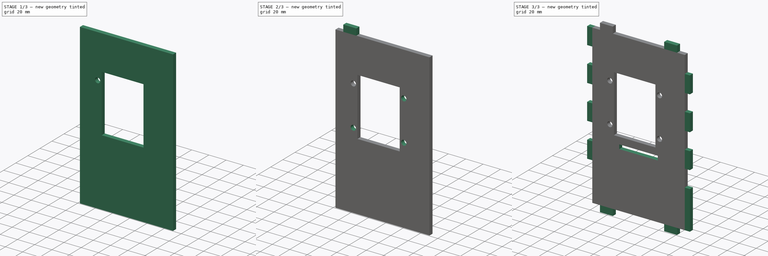
[diagram: build sequence overview — one tinted view per stage of 3, left to right]
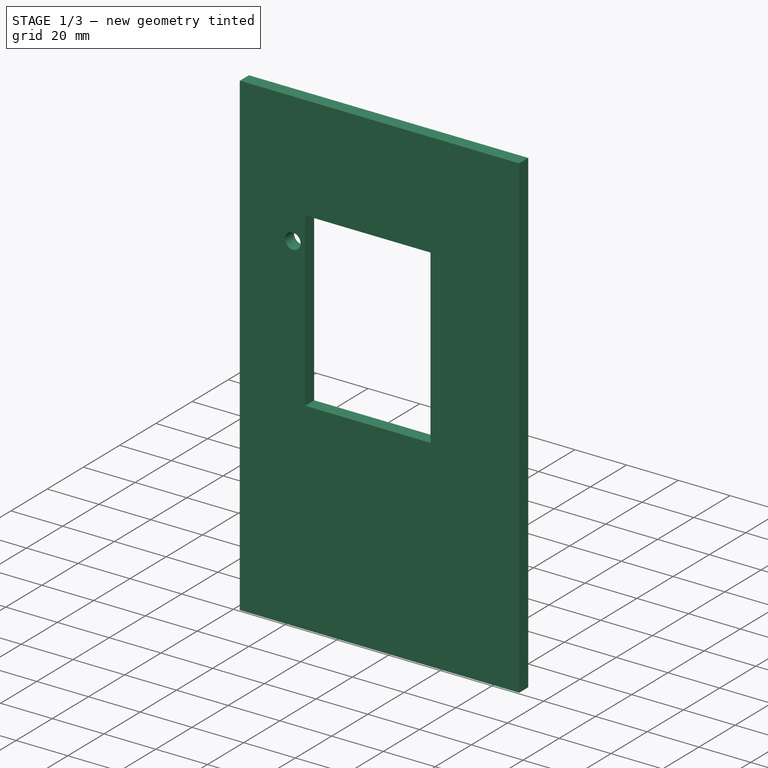
[diagram: stage 1 of 3 — iso view after this stage's code; geometry added in this stage tinted green]
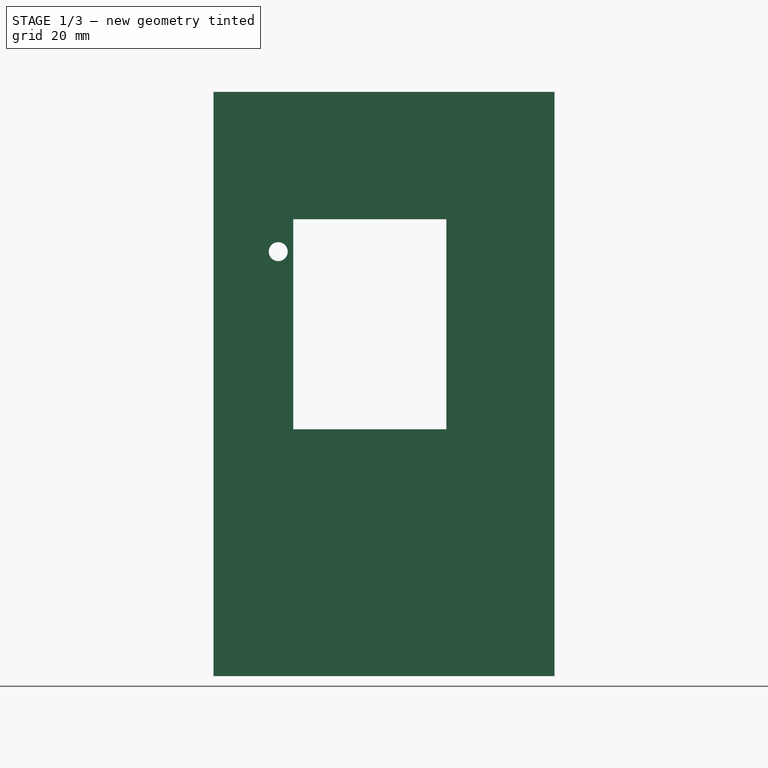
[diagram: stage 1 of 3 — front view after this stage's code; geometry added in this stage tinted green]
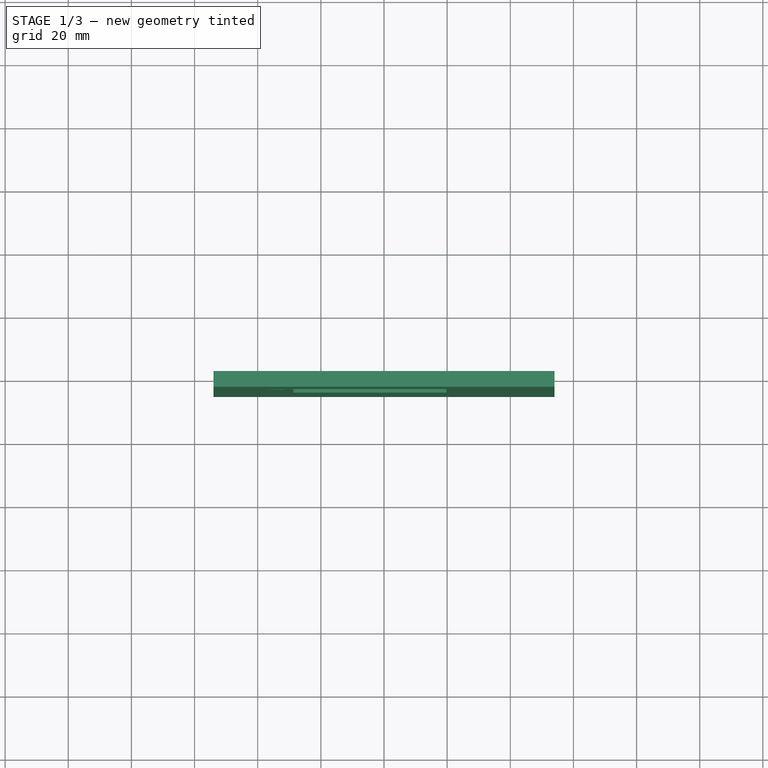
[diagram: stage 1 of 3 — top view after this stage's code; geometry added in this stage tinted green]
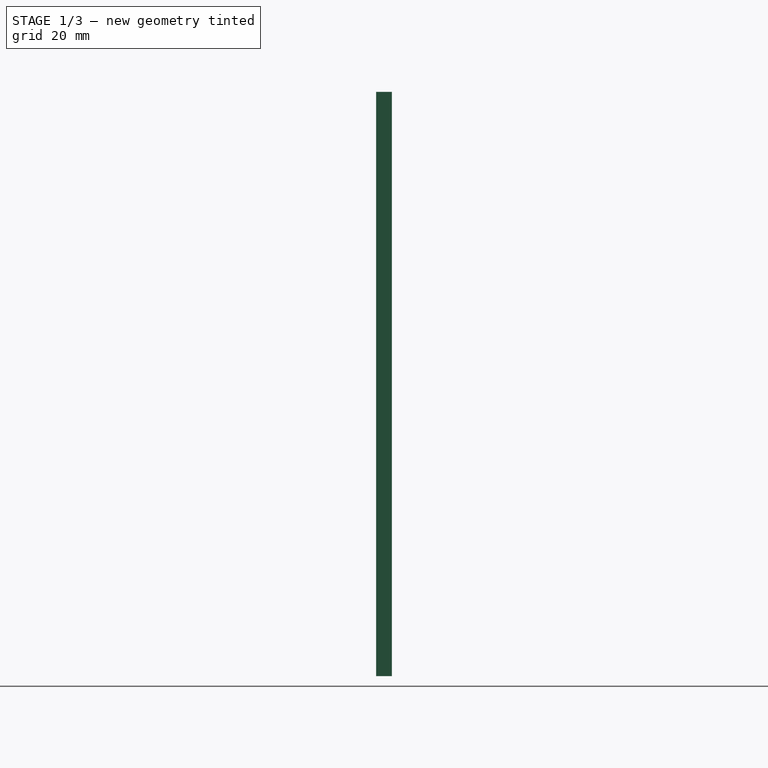
[diagram: stage 1 of 3 — right view after this stage's code; geometry added in this stage tinted green]
FCSTD DOCUMENT  (FreeCAD 0.15R4671 (Git))
Label: face
License: All rights reserved
LicenseURL: http://fr.wikipedia.org/wiki/<copyright redacted>
objects: Sketcher::SketchObject×6, PartDesign::Mirrored×4, PartDesign::Pad×3, PartDesign::Pocket×3, PartDesign::MultiTransform×2
note: 24 computed .brp shape members not serialized (recipe doc carries the construction recipe); baked Part::Feature solids carry a one-line shape summary decoded from their .brp

FEATURE [Sketcher::SketchObject] Sketch  label="BaseRectangle_Sketch"
  Placement = pos=(0,0,0) rot=(1,0,0;1.5708rad)
  sketch-geometry (4):
    g0: LineSegment StartX=-54 StartY=92.5 StartZ=0 EndX=54 EndY=92.5 EndZ=0
    g1: LineSegment StartX=54 StartY=92.5 StartZ=0 EndX=54 EndY=-92.5 EndZ=0
    g2: LineSegment StartX=54 StartY=-92.5 StartZ=0 EndX=-54 EndY=-92.5 EndZ=0
    g3: LineSegment StartX=-54 StartY=-92.5 StartZ=0 EndX=-54 EndY=92.5 EndZ=0
  constraints (11):
    c: Coincident(g0,g1)
    c: Coincident(g1,g2)
    c: Coincident(g2,g3)
    c: Coincident(g3,g0)
    c: Horizontal(g0)
    c: Horizontal(g2)
    c: Vertical(g1)
    c: Vertical(g3)
    c: Symmetric(g0,g2,g-1)
    c: Distance(g0) = 108
    c: Distance(g3) = 185
FEATURE [PartDesign::Pad] Pad  label="Rectangle_Pad"
  Length = 5
  Length2 = 100
  Placement = pos=(0,0,0) rot=(1,0,0;1.5708rad)
  Sketch = -> Sketch
  Type = 0
FEATURE [Sketcher::SketchObject] Sketch001  label="GoProEmplacement_TODO_Sketch001"
  ExternalGeometry = -> [Pad]
  Placement = pos=(0,-5,0) rot=(1,0,0;1.5708rad)
  Support = -> Pad [Face6]
  sketch-geometry (10):
    g0: LineSegment StartX=-28.75 StartY=52.167 StartZ=0 EndX=19.75 EndY=52.167 EndZ=0
    g1: LineSegment StartX=19.75 StartY=52.167 StartZ=0 EndX=19.75 EndY=-14.333 EndZ=0
    g2: LineSegment StartX=19.75 StartY=-14.333 StartZ=0 EndX=-28.75 EndY=-14.333 EndZ=0
    g3: LineSegment StartX=-28.75 StartY=-14.333 StartZ=0 EndX=-28.75 EndY=52.167 EndZ=0
    g4: Circle [constr] CenterX=0 CenterY=3.417 CenterZ=0 NormalX=0 NormalY=0 NormalZ=1 Radius=10
    g5: LineSegment [constr] StartX=-4.65 StartY=43.767 StartZ=0 EndX=11.35 EndY=43.767 EndZ=0
    g6: LineSegment [constr] StartX=11.35 StartY=43.767 StartZ=0 EndX=11.35 EndY=29.767 EndZ=0
    g7: LineSegment [constr] StartX=11.35 StartY=29.767 StartZ=0 EndX=-4.65 EndY=29.767 EndZ=0
    g8: LineSegment [constr] StartX=-4.65 StartY=29.767 StartZ=0 EndX=-4.65 EndY=43.767 EndZ=0
    g9: LineSegment [constr] StartX=0 StartY=85 StartZ=0 EndX=0 EndY=3.417 EndZ=0
  constraints (30):
    c: Coincident(g0,g1)
    c: Coincident(g1,g2)
    c: Coincident(g2,g3)
    c: Coincident(g3,g0)
    c: Horizontal(g0)
    c: Horizontal(g2)
    c: Vertical(g1)
    c: Vertical(g3)
    c: Distance(g0) = 48.5
    c: Distance(g3) = 66.5
    c: Radius(g4) = 10
    c: DistanceY(g4,g-4) = 81.583
    c: DistanceY(g4,g1) = -17.75
    c: Coincident(g5,g6)
    c: Coincident(g6,g7)
    c: Coincident(g7,g8)
    c: Coincident(g8,g5)
    c: Horizontal(g5)
    c: Horizontal(g7)
    c: Vertical(g6)
    c: Vertical(g8)
    c: DistanceX(g6,g0) = 8.4
    c: Distance(g6) = 14
    c: Distance(g7) = 16
    c: DistanceY(g0,g5) = -8.4
    c: PointOnObject(g9,g-4)
    c: Vertical(g9)
    c: Symmetric(g-4,g-4,g9)
    c: Coincident(g9,g4)
    c: DistanceX(g4,g1) = 19.75
FEATURE [PartDesign::Pocket] Pocket
  Length = 5
  Placement = pos=(0,0,0) rot=(1,0,0;1.5708rad)
  Sketch = -> Sketch001
  Type = 0
FEATURE [Sketcher::SketchObject] Sketch002  label="GoPro_attach_Sketch002"
  ExternalGeometry = -> [Pocket]
  Placement = pos=(0,-5,0) rot=(1,0,0;1.5708rad)
  Support = -> Pocket [Face5]
  sketch-geometry (6):
    g0: LineSegment [constr] StartX=-28.75 StartY=46.917 StartZ=0 EndX=-33.5 EndY=46.917 EndZ=0
    g1: LineSegment [constr] StartX=-28.75 StartY=36.917 StartZ=0 EndX=-33.5 EndY=36.917 EndZ=0
    g2: ArcOfCircle [constr] CenterX=-33.5 CenterY=41.917 CenterZ=0 NormalX=0 NormalY=0 NormalZ=1 Radius=5 StartAngle=1.5708 EndAngle=4.71239
    g3: Circle CenterX=-33.5 CenterY=41.917 CenterZ=0 NormalX=0 NormalY=0 NormalZ=1 Radius=3
    g4: LineSegment [constr] StartX=-4.5 StartY=52.167 StartZ=0 EndX=-4.5 EndY=18.2625 EndZ=0
    g5: LineSegment [constr] StartX=-28.75 StartY=18.917 StartZ=0 EndX=19.4138 EndY=18.917 EndZ=0
  constraints (17):
    c: Equal(g1,g0)
    c: Coincident(g3,g2)
    c: Radius(g3) = 3
    c: DistanceX(g2,g0) = 0
    c: Radius(g2) = 5
    c: Coincident(g2,g1)
    c: Coincident(g2,g0)
    c: Horizontal(g1)
    c: Horizontal(g0)
    c: Vertical(g4)
    c: Horizontal(g5)
    c: PointOnObject(g0,g-3)
    c: PointOnObject(g1,g-3)
    c: Symmetric(g-4,g-4,g4)
    c: Symmetric(g-3,g-4,g5)
    c: DistanceX(g4,g2) = -29
    c: DistanceY(g0,g5) = -28
FEATURE [PartDesign::Pocket] Pocket001  label="Attach_GoPro_Pocket001"
  Length = 5
  Placement = pos=(0,0,0) rot=(1,0,0;1.5708rad)
  Sketch = -> Sketch002
  Type = 1
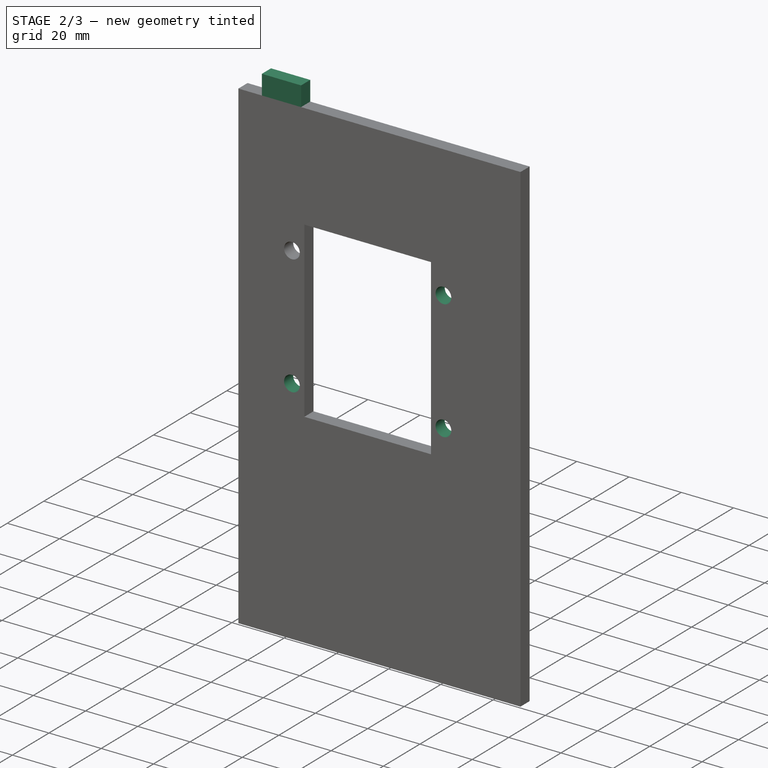
[diagram: stage 2 of 3 — iso view after this stage's code; geometry added in this stage tinted green]
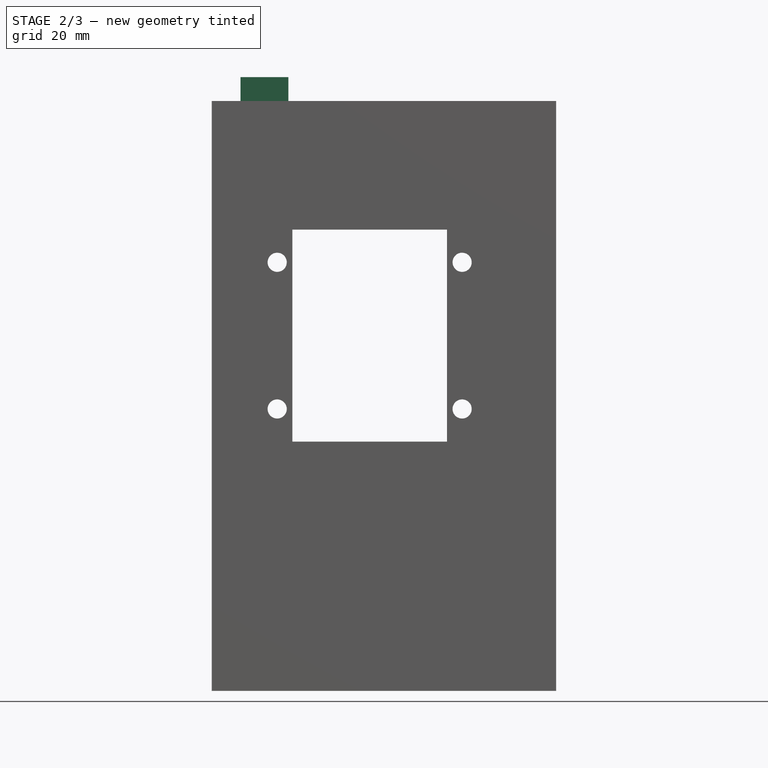
[diagram: stage 2 of 3 — front view after this stage's code; geometry added in this stage tinted green]
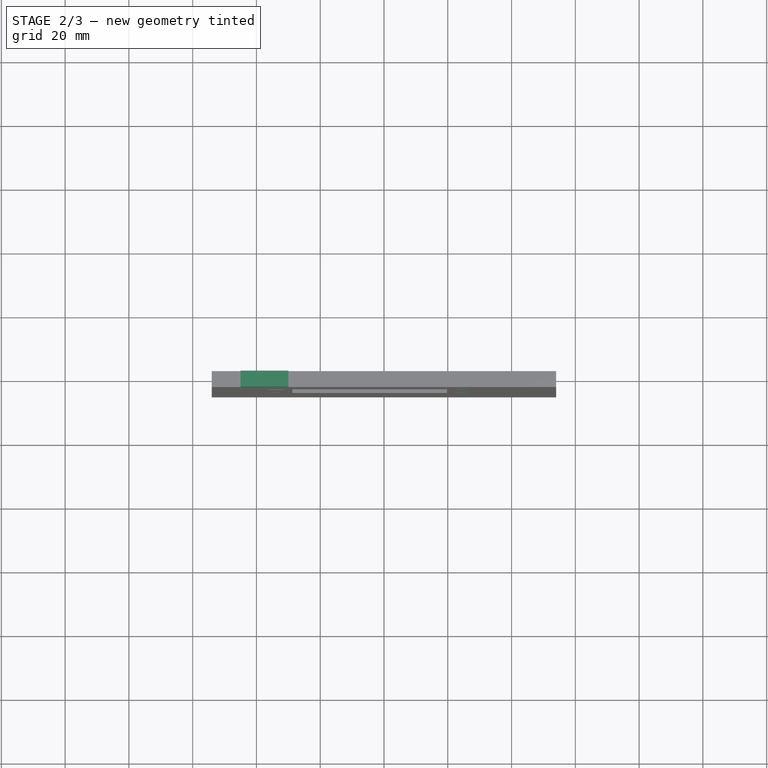
[diagram: stage 2 of 3 — top view after this stage's code; geometry added in this stage tinted green]
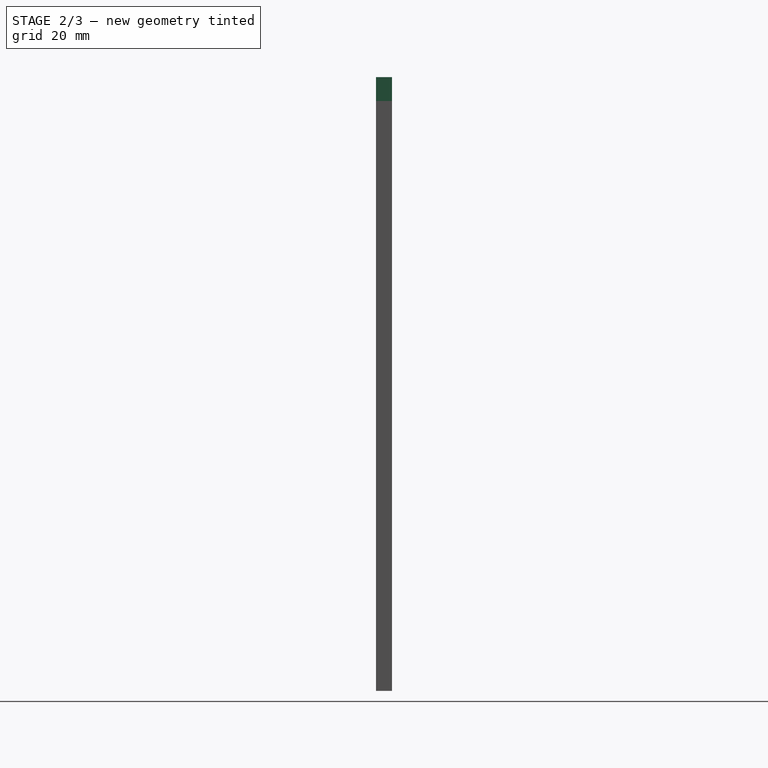
[diagram: stage 2 of 3 — right view after this stage's code; geometry added in this stage tinted green]
FEATURE [PartDesign::Mirrored] Mirrored
  MirrorPlane = -> Sketch002 [Axis2]
  Placement = pos=(0,0,0) rot=(1,0,0;1.5708rad)
FEATURE [PartDesign::Mirrored] Mirrored001
  MirrorPlane = -> Sketch002 [Axis3]
  Placement = pos=(0,0,0) rot=(1,0,0;1.5708rad)
FEATURE [PartDesign::MultiTransform] MultiTransform
  Originals = -> [Pocket001]
  Placement = pos=(0,0,0) rot=(1,0,0;1.5708rad)
  Transformations = -> [Mirrored,Mirrored001]
FEATURE [Sketcher::SketchObject] Sketch003  label="TopLeftAttach_Sketch003"
  ExternalGeometry = -> [MultiTransform]
  Placement = pos=(0,-5,0) rot=(1,0,0;1.5708rad)
  Support = -> MultiTransform [Face5]
  sketch-geometry (4):
    g0: LineSegment StartX=-45 StartY=92.5 StartZ=0 EndX=-30 EndY=92.5 EndZ=0
    g1: LineSegment StartX=-30 StartY=92.5 StartZ=0 EndX=-30 EndY=100 EndZ=0
    g2: LineSegment StartX=-30 StartY=100 StartZ=0 EndX=-45 EndY=100 EndZ=0
    g3: LineSegment StartX=-45 StartY=100 StartZ=0 EndX=-45 EndY=92.5 EndZ=0
  constraints (12):
    c: Coincident(g0,g1)
    c: Coincident(g1,g2)
    c: Coincident(g2,g3)
    c: Coincident(g3,g0)
    c: Horizontal(g0)
    c: Horizontal(g2)
    c: Vertical(g1)
    c: Vertical(g3)
    c: PointOnObject(g0,g-3)
    c: Distance(g-3,g0) = 9
    c: Distance(g2) = 15
    c: Distance(g1) = 7.5
FEATURE [PartDesign::Pad] Pad001  label="TopLeftAttach_Pad001"
  Length = 5
  Length2 = 100
  Placement = pos=(0,0,0) rot=(1,0,0;1.5708rad)
  Reversed = true
  Sketch = -> Sketch003
  Type = 0
  UpToFace = -> MultiTransform [Face4]
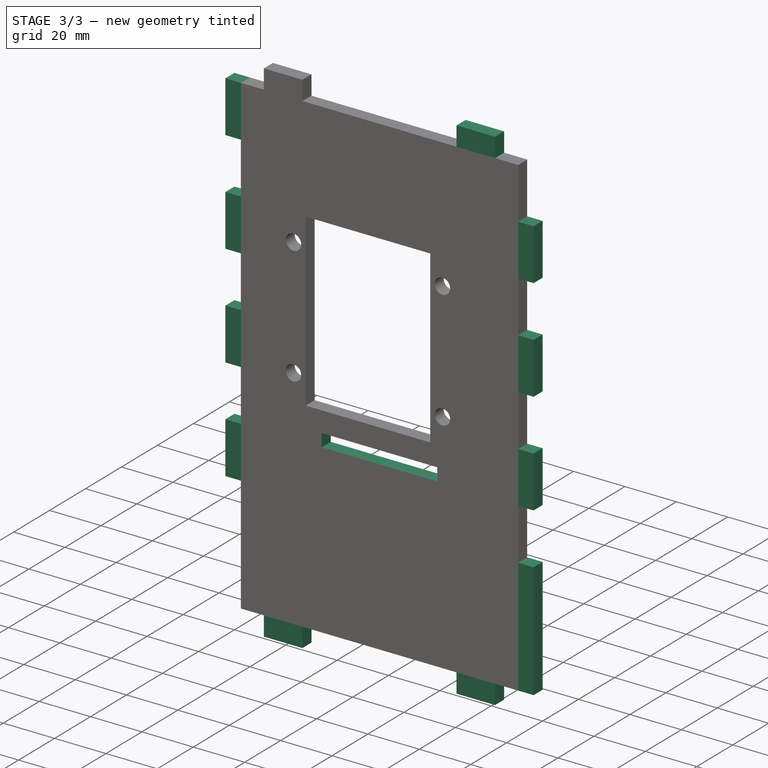
[diagram: stage 3 of 3 — iso view after this stage's code; geometry added in this stage tinted green]
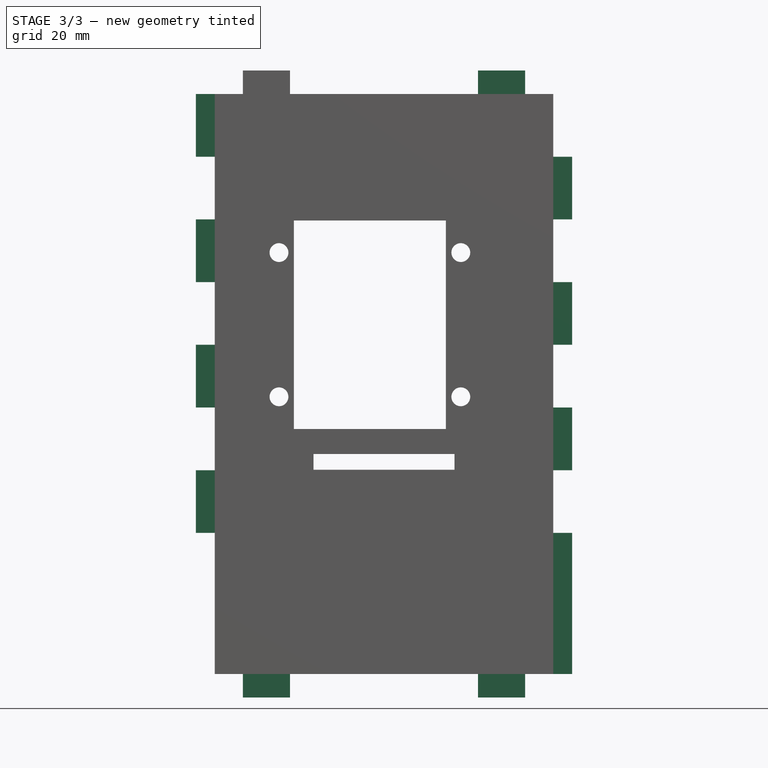
[diagram: stage 3 of 3 — front view after this stage's code; geometry added in this stage tinted green]
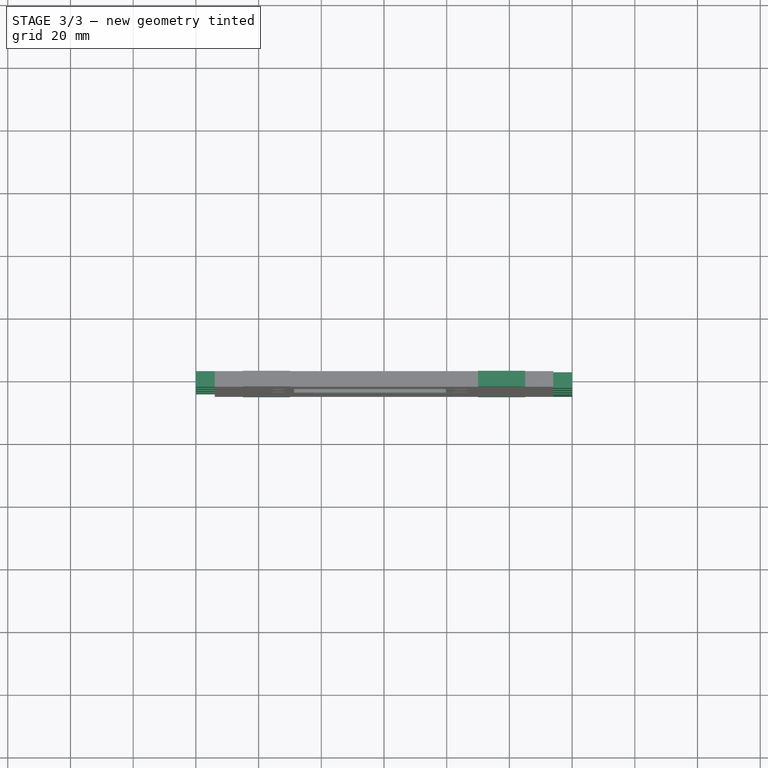
[diagram: stage 3 of 3 — top view after this stage's code; geometry added in this stage tinted green]
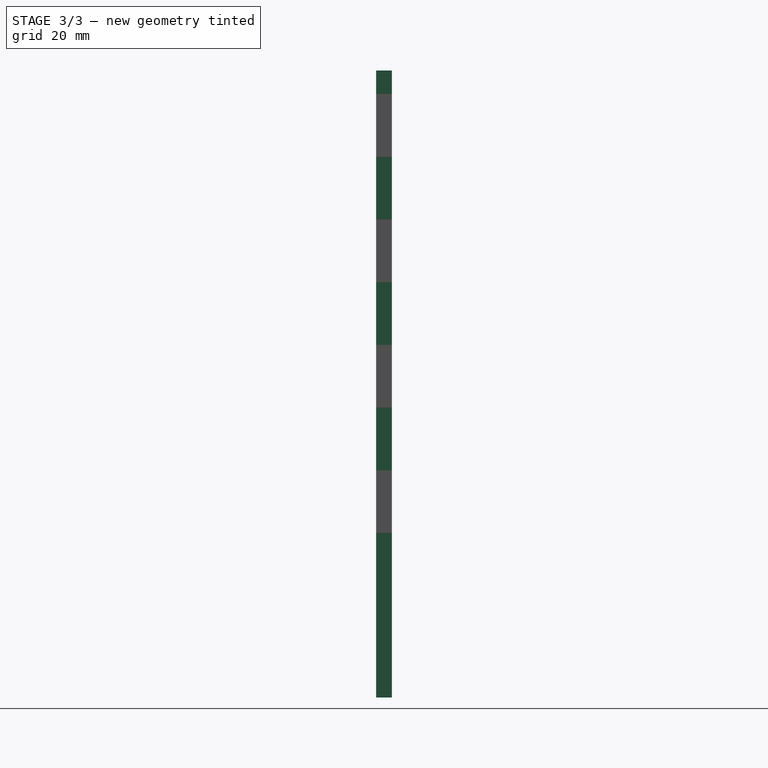
[diagram: stage 3 of 3 — right view after this stage's code; geometry added in this stage tinted green]
FEATURE [PartDesign::Mirrored] Mirrored003
  MirrorPlane = -> Sketch003 [H_Axis]
  Placement = pos=(0,0,0) rot=(1,0,0;1.5708rad)
FEATURE [PartDesign::Mirrored] Mirrored002
  MirrorPlane = -> Sketch003 [V_Axis]
  Placement = pos=(0,0,0) rot=(1,0,0;1.5708rad)
FEATURE [PartDesign::MultiTransform] MultiTransform001  label="AllAttach_MultiTransform001"
  Originals = -> [Pad001]
  Placement = pos=(0,0,0) rot=(1,0,0;1.5708rad)
  Transformations = -> [Mirrored002,Mirrored003]
FEATURE [Sketcher::SketchObject] Sketch004
  ExternalGeometry = -> [MultiTransform001]
  Placement = pos=(0,-5,0) rot=(1,0,0;1.5708rad)
  Support = -> MultiTransform001 [Face21]
  sketch-geometry (32):
    g0: LineSegment StartX=-54 StartY=92.5 StartZ=0 EndX=-60 EndY=92.5 EndZ=0
    g1: LineSegment StartX=-60 StartY=92.5 StartZ=0 EndX=-60 EndY=72.5 EndZ=0
    g2: LineSegment StartX=-60 StartY=72.5 StartZ=0 EndX=-54 EndY=72.5 EndZ=0
    g3: LineSegment StartX=-54 StartY=72.5 StartZ=0 EndX=-54 EndY=92.5 EndZ=0
    g4: LineSegment StartX=-60 StartY=52.5 StartZ=0 EndX=-54 EndY=52.5 EndZ=0
    g5: LineSegment StartX=-54 StartY=52.5 StartZ=0 EndX=-54 EndY=32.5 EndZ=0
    g6: LineSegment StartX=-54 StartY=32.5 StartZ=0 EndX=-60 EndY=32.5 EndZ=0
    g7: LineSegment StartX=-60 StartY=32.5 StartZ=0 EndX=-60 EndY=52.5 EndZ=0
    g8: LineSegment StartX=-60 StartY=12.5 StartZ=0 EndX=-54 EndY=12.5 EndZ=0
    g9: LineSegment StartX=-54 StartY=12.5 StartZ=0 EndX=-54 EndY=-7.5 EndZ=0
    g10: LineSegment StartX=-54 StartY=-7.5 StartZ=0 EndX=-60 EndY=-7.5 EndZ=0
    g11: LineSegment StartX=-60 StartY=-7.5 StartZ=0 EndX=-60 EndY=12.5 EndZ=0
    g12: LineSegment StartX=-60 StartY=-27.5 StartZ=0 EndX=-54 EndY=-27.5 EndZ=0
    g13: LineSegment StartX=-54 StartY=-27.5 StartZ=0 EndX=-54 EndY=-47.5 EndZ=0
    g14: LineSegment StartX=-54 StartY=-47.5 StartZ=0 EndX=-60 EndY=-47.5 EndZ=0
    g15: LineSegment StartX=-60 StartY=-47.5 StartZ=0 EndX=-60 EndY=-27.5 EndZ=0
    g16: LineSegment StartX=54 StartY=72.5 StartZ=0 EndX=60 EndY=72.5 EndZ=0
    g17: LineSegment StartX=60 StartY=72.5 StartZ=0 EndX=60 EndY=52.5 EndZ=0
    g18: LineSegment StartX=60 StartY=52.5 StartZ=0 EndX=54 EndY=52.5 EndZ=0
    g19: LineSegment StartX=54 StartY=52.5 StartZ=0 EndX=54 EndY=72.5 EndZ=0
    g20: LineSegment StartX=54 StartY=32.5 StartZ=0 EndX=60 EndY=32.5 EndZ=0
    g21: LineSegment StartX=60 StartY=32.5 StartZ=0 EndX=60 EndY=12.5 EndZ=0
    g22: LineSegment StartX=60 StartY=12.5 StartZ=0 EndX=54 EndY=12.5 EndZ=0
    g23: LineSegment StartX=54 StartY=12.5 StartZ=0 EndX=54 EndY=32.5 EndZ=0
    g24: LineSegment StartX=54 StartY=-7.5 StartZ=0 EndX=60 EndY=-7.5 EndZ=0
    g25: LineSegment StartX=60 StartY=-7.5 StartZ=0 EndX=60 EndY=-27.5 EndZ=0
    g26: LineSegment StartX=60 StartY=-27.5 StartZ=0 EndX=54 EndY=-27.5 EndZ=0
    g27: LineSegment StartX=54 StartY=-27.5 StartZ=0 EndX=54 EndY=-7.5 EndZ=0
    g28: LineSegment StartX=54 StartY=-92.5 StartZ=0 EndX=60 EndY=-92.5 EndZ=0
    g29: LineSegment StartX=60 StartY=-92.5 StartZ=0 EndX=60 EndY=-47.5 EndZ=0
    g30: LineSegment StartX=60 StartY=-47.5 StartZ=0 EndX=54 EndY=-47.5 EndZ=0
    g31: LineSegment StartX=54 StartY=-47.5 StartZ=0 EndX=54 EndY=-92.5 EndZ=0
  constraints (94):
    c: Coincident(g0,g1)
    c: Coincident(g1,g2)
    c: Coincident(g2,g3)
    c: Coincident(g3,g0)
    c: Horizontal(g0)
    c: Horizontal(g2)
    c: Vertical(g1)
    c: Vertical(g3)
    c: Coincident(g0,g-3)
    c: Distance(g0) = 6
    c: Distance(g1) = 20
    c: Coincident(g4,g5)
    c: Coincident(g5,g6)
    c: Coincident(g6,g7)
    c: Coincident(g7,g4)
    c: Horizontal(g4)
    c: Horizontal(g6)
    c: Vertical(g5)
    c: Vertical(g7)
    c: PointOnObject(g5,g-3)
    c: Equal(g7,g1)
    c: Equal(g4,g2)
    c: Distance(g4,g2) = 20
    c: Coincident(g8,g9)
    c: Coincident(g9,g10)
    c: Coincident(g10,g11)
    c: Coincident(g11,g8)
    c: Horizontal(g8)
    c: Horizontal(g10)
    c: Vertical(g9)
    c: Vertical(g11)
    c: PointOnObject(g9,g-3)
    c: Equal(g6,g8)
    c: Equal(g11,g7)
    c: Distance(g5,g8) = 20
    c: Coincident(g12,g13)
    c: Coincident(g13,g14)
    c: Coincident(g14,g15)
    c: Coincident(g15,g12)
    c: Horizontal(g12)
    c: Horizontal(g14)
    c: Vertical(g13)
    c: Vertical(g15)
    c: PointOnObject(g13,g-3)
    c: Equal(g10,g12)
    c: Distance(g12,g9) = 20
    c: Equal(g15,g11)
    c: Coincident(g16,g17)
    c: Coincident(g17,g18)
    c: Coincident(g18,g19)
    c: Coincident(g19,g16)
    c: Horizontal(g16)
    c: Horizontal(g18)
    c: Vertical(g17)
    c: Vertical(g19)
    c: PointOnObject(g16,g-4)
    c: Equal(g16,g2)
    c: Equal(g17,g1)
    c: Distance(g-4,g16) = 20
    c: Coincident(g20,g21)
    c: Coincident(g21,g22)
    c: Coincident(g22,g23)
    c: Coincident(g23,g20)
    c: Horizontal(g20)
    c: Horizontal(g22)
    c: Vertical(g21)
    c: Vertical(g23)
    c: PointOnObject(g20,g-4)
    c: Equal(g18,g20)
    c: Equal(g21,g17)
    c: Distance(g18,g20) = 20
    c: Coincident(g24,g25)
    c: Coincident(g25,g26)
    c: Coincident(g26,g27)
    c: Coincident(g27,g24)
    c: Horizontal(g24)
    c: Horizontal(g26)
    c: Vertical(g25)
    c: Vertical(g27)
    c: PointOnObject(g24,g-4)
    c: Distance(g22,g24) = 20
    c: Equal(g22,g24)
    c: Equal(g25,g21)
    c: Coincident(g28,g29)
    c: Coincident(g29,g30)
    c: Coincident(g30,g31)
    c: Coincident(g31,g28)
    c: Horizontal(g28)
    c: Horizontal(g30)
    c: Vertical(g29)
    c: Vertical(g31)
    c: Coincident(g28,g-4)
    c: Equal(g30,g26)
    c: Distance(g30,g26) = 20
FEATURE [PartDesign::Pad] Pad002  label="BorderMargin_Pad002"
  Length = 5
  Length2 = 100
  Placement = pos=(0,0,0) rot=(1,0,0;1.5708rad)
  Reversed = true
  Sketch = -> Sketch004
  Type = 0
  UpToFace = -> MultiTransform001 [Face30]
FEATURE [Sketcher::SketchObject] Sketch005  label="EtageInt_Sketch005"
  ExternalGeometry = -> [Pad002]
  Placement = pos=(0,-5,0) rot=(1,0,0;1.5708rad)
  Support = -> Pad002 [Face57]
  sketch-geometry (5):
    g0: LineSegment StartX=-22.5 StartY=-22.333 StartZ=0 EndX=22.5 EndY=-22.333 EndZ=0
    g1: LineSegment StartX=22.5 StartY=-22.333 StartZ=0 EndX=22.5 EndY=-27.333 EndZ=0
    g2: LineSegment StartX=22.5 StartY=-27.333 StartZ=0 EndX=-22.5 EndY=-27.333 EndZ=0
    g3: LineSegment StartX=-22.5 StartY=-27.333 StartZ=0 EndX=-22.5 EndY=-22.333 EndZ=0
    g4: LineSegment [constr] StartX=0 StartY=-22.333 StartZ=0 EndX=0 EndY=-27.333 EndZ=0
  constraints (16):
    c: Coincident(g0,g1)
    c: Coincident(g1,g2)
    c: Coincident(g2,g3)
    c: Coincident(g3,g0)
    c: Horizontal(g0)
    c: Horizontal(g2)
    c: Vertical(g1)
    c: Vertical(g3)
    c: Distance(g1) = 5
    c: Distance(g0) = 45
    c: PointOnObject(g4,g0)
    c: PointOnObject(g4,g2)
    c: Vertical(g4)
    c: Symmetric(g2,g1,g4)
    c: PointOnObject(g4,g-2)
    c: DistanceY(g-3,g0) = -8
FEATURE [PartDesign::Pocket] Pocket002  label="EtagereInt_Pocket002"
  Length = 5
  Placement = pos=(0,0,0) rot=(1,0,0;1.5708rad)
  Sketch = -> Sketch005
  Type = 1
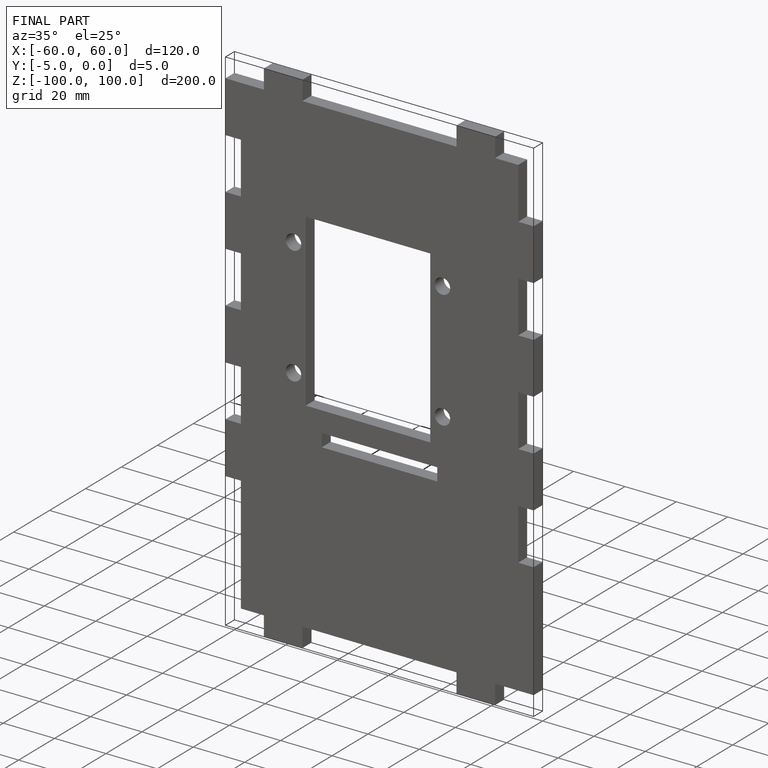
[diagram: finished part — iso view with bounding-box wireframe]
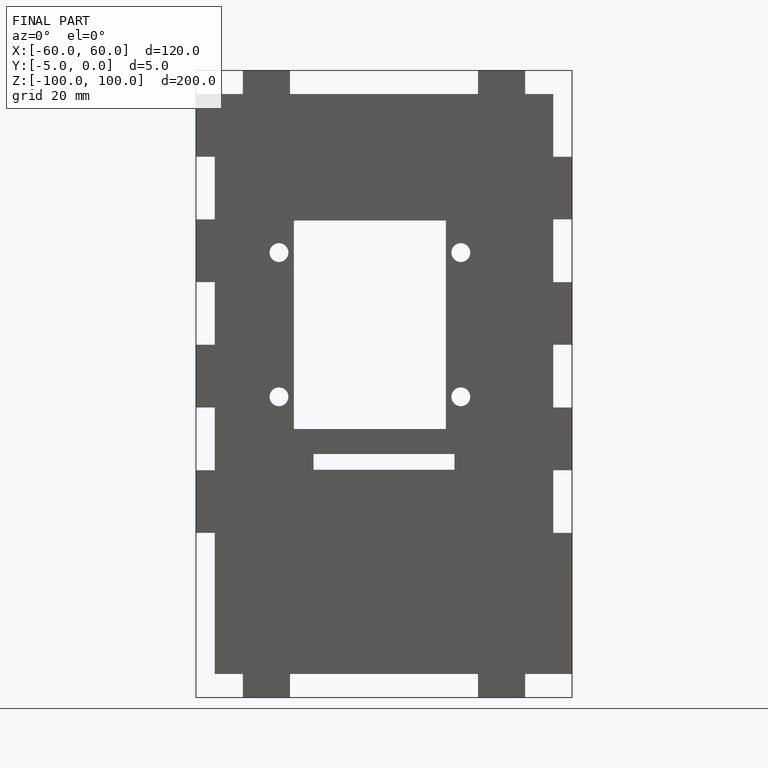
[diagram: finished part — front view with bounding-box wireframe]
